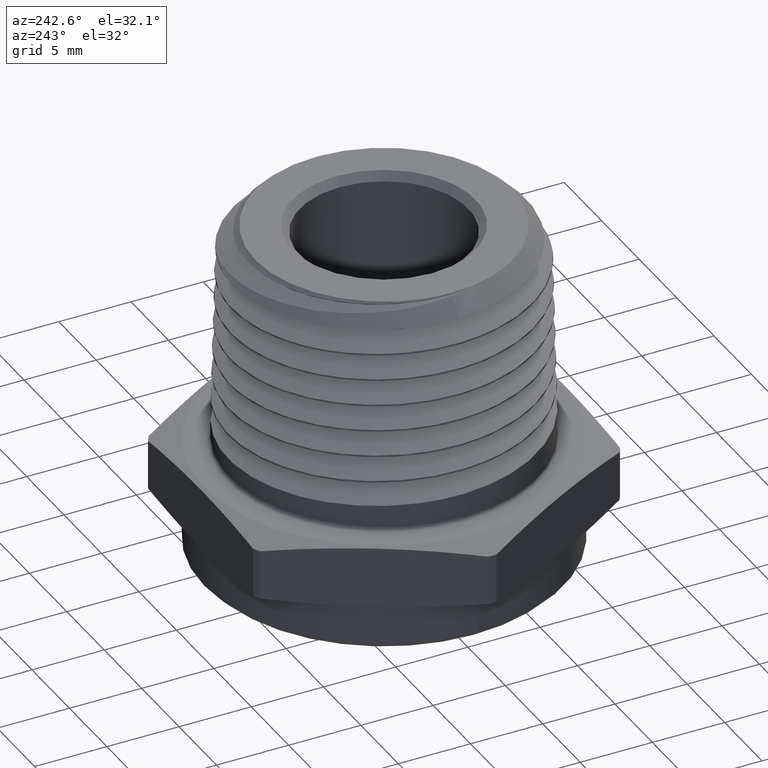
[diagram: clean part render]
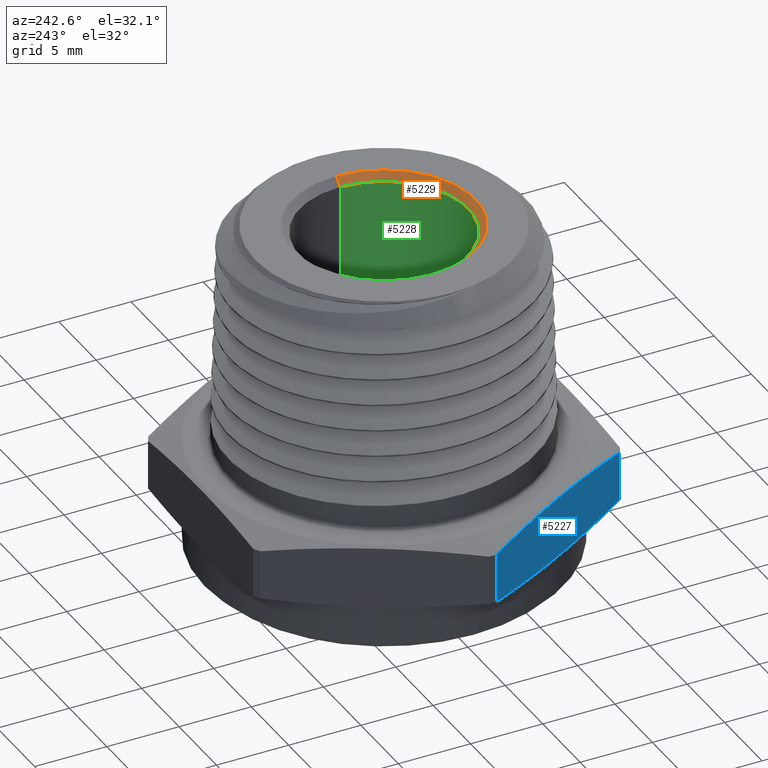
[diagram: same view with three faces highlighted in distinct colors, each labeled with its STEP entity id]
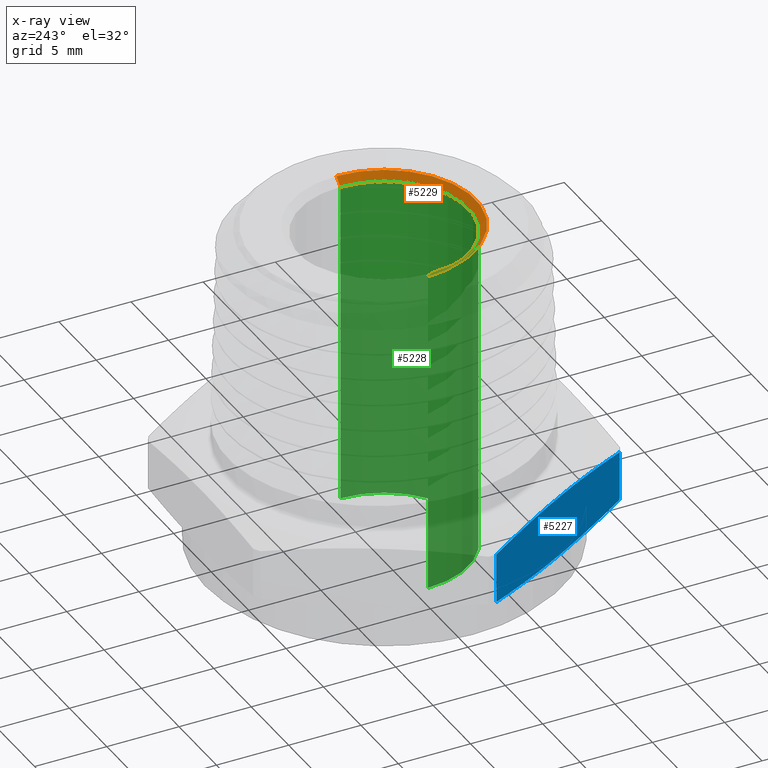
[diagram: x-ray of the same camera — body ghosted, the three highlighted faces saturated]
A machine part, auxiliary view with three faces highlighted in distinct colors.
The next image is the same camera in x-ray (body ghosted, the three faces saturated) — at least one of them is partly hidden behind the body in this view.
Their STEP definitions:

[orange] entity #5229 — the highlighted conical surface has half-angle 45 deg.
#228 = VERTEX_POINT ( 'NONE', #4882 ) ;
#237 = VERTEX_POINT ( 'NONE', #4891 ) ;
#238 = VERTEX_POINT ( 'NONE', #4892 ) ;
#240 = VERTEX_POINT ( 'NONE', #4894 ) ;
#297 = EDGE_LOOP ( 'NONE', ( #2568, #2569, #2570, #2571 ) ) ;
#2057 = CARTESIAN_POINT ( 'NONE',  ( 1.510396341863000100E-018, 0.0000000000000000000, 0.7599999999999999000 ) ) ;
#2058 = DIRECTION ( 'NONE',  ( 2.430948377055037300E-018, -0.0000000000000000000, -1.000000000000000000 ) ) ;
#2059 = DIRECTION ( 'NONE',  ( -1.000000000000000000, 0.0000000000000000000, 0.0000000000000000000 ) ) ;
#2060 = DIRECTION ( 'NONE',  ( 0.7071067811865421300, 0.0000000000000000000, 0.7071067811865529000 ) ) ;
#2061 = CARTESIAN_POINT ( 'NONE',  ( -0.2299999999999998700, 2.816687638038910500E-017, 0.7599999999999999000 ) ) ;
#2065 = CARTESIAN_POINT ( 'NONE',  ( 0.2299999999999998700, 0.0000000000000000000, 0.7599999999999999000 ) ) ;
#2066 = DIRECTION ( 'NONE',  ( -0.7071067811865421300, 8.659560562354867500E-017, 0.7071067811865529000 ) ) ;
#2069 = CARTESIAN_POINT ( 'NONE',  ( 1.461777374321899200E-018, 0.0000000000000000000, 0.7800000000000000300 ) ) ;
#2070 = DIRECTION ( 'NONE',  ( 2.430948377055037300E-018, -0.0000000000000000000, -1.000000000000000000 ) ) ;
#2071 = DIRECTION ( 'NONE',  ( -1.000000000000000000, 0.0000000000000000000, 0.0000000000000000000 ) ) ;
#2535 = AXIS2_PLACEMENT_3D ( 'NONE', #5031, #5032, #5030 ) ;
#2568 = ORIENTED_EDGE ( 'NONE', *, *, #3145, .T. ) ;
#2569 = ORIENTED_EDGE ( 'NONE', *, *, #3148, .T. ) ;
#2570 = ORIENTED_EDGE ( 'NONE', *, *, #3149, .F. ) ;
#2571 = ORIENTED_EDGE ( 'NONE', *, *, #3150, .F. ) ;
#2711 = CIRCLE ( 'NONE', #3069, 0.2299999999999998700 ) ;
#2715 = LINE ( 'NONE', #2061, #2720 ) ;
#2719 = CIRCLE ( 'NONE', #3071, 0.2499999999999996100 ) ;
#2720 = VECTOR ( 'NONE', #2066, 39.37007874015748100 ) ;
#2721 = LINE ( 'NONE', #2065, #2723 ) ;
#2723 = VECTOR ( 'NONE', #2060, 39.37007874015748100 ) ;
#3069 = AXIS2_PLACEMENT_3D ( 'NONE', #2057, #2058, #2059 ) ;
#3071 = AXIS2_PLACEMENT_3D ( 'NONE', #2069, #2070, #2071 ) ;
#3145 = EDGE_CURVE ( 'NONE', #240, #238, #2711, .T. ) ;
#3148 = EDGE_CURVE ( 'NONE', #238, #237, #2715, .T. ) ;
#3149 = EDGE_CURVE ( 'NONE', #228, #237, #2719, .T. ) ;
#3150 = EDGE_CURVE ( 'NONE', #240, #228, #2721, .T. ) ;
#4882 = CARTESIAN_POINT ( 'NONE',  ( 0.2499999999999996100, 0.0000000000000000000, 0.7800000000000000300 ) ) ;
#4891 = CARTESIAN_POINT ( 'NONE',  ( -0.2499999999999996100, 3.061616997868378700E-017, 0.7800000000000000300 ) ) ;
#4892 = CARTESIAN_POINT ( 'NONE',  ( -0.2299999999999998700, 2.939152317953644300E-017, 0.7599999999999999000 ) ) ;
#4894 = CARTESIAN_POINT ( 'NONE',  ( 0.2299999999999998700, 0.0000000000000000000, 0.7599999999999999000 ) ) ;
#5030 = DIRECTION ( 'NONE',  ( 1.000000000000000000, 0.0000000000000000000, 0.0000000000000000000 ) ) ;
#5031 = CARTESIAN_POINT ( 'NONE',  ( 1.510396341863000100E-018, 0.0000000000000000000, 0.7599999999999999000 ) ) ;
#5032 = DIRECTION ( 'NONE',  ( -2.430948377055037300E-018, 0.0000000000000000000, 1.000000000000000000 ) ) ;
#5153 = FACE_OUTER_BOUND ( 'NONE', #297, .T. ) ;
#5162 = CONICAL_SURFACE ( 'NONE', #2535, 0.2299999999999998700, 0.7853981633974407300 ) ;
#5229 = ADVANCED_FACE ( 'NONE', ( #5153 ), #5162, .F. ) ;

[blue] entity #5227 — the highlighted planar face has unit normal (0.866, 0.5, 0).
#255 = EDGE_LOOP ( 'NONE', ( #3590, #3591, #3592, #3593 ) ) ;
#1453 = DIRECTION ( 'NONE',  ( 1.224646799147351200E-016, 0.0000000000000000000, 1.000000000000000000 ) ) ;
#1455 = CARTESIAN_POINT ( 'NONE',  ( -0.2947727564142041400, -0.4894386092034729900, -1.692951067439552400E-017 ) ) ;
#1479 = CARTESIAN_POINT ( 'NONE',  ( -0.3408527382402091200, -0.4096257394689820600, 0.1612771239217950000 ) ) ;
#1484 = CARTESIAN_POINT ( 'NONE',  ( -0.3178127473272067100, -0.4495321743362275500, 0.1574481345656340800 ) ) ;
#1491 = CARTESIAN_POINT ( 'NONE',  ( -0.2947727564142042000, -0.4894386092034731000, 0.1527084664901230100 ) ) ;
#1493 = CARTESIAN_POINT ( 'NONE',  ( -0.3869327200662141000, -0.3298128697344910300, 0.1664973008015930000 ) ) ;
#1494 = CARTESIAN_POINT ( 'NONE',  ( -0.4330127018922188000, -0.2500000000000000600, 0.1692515679650067300 ) ) ;
#1495 = CARTESIAN_POINT ( 'NONE',  ( -0.4790926837182239400, -0.1701871302655092200, 0.1664973008015930000 ) ) ;
#1496 = CARTESIAN_POINT ( 'NONE',  ( -0.5251726655442290300, -0.09037426053101824100, 0.1612771239217950000 ) ) ;
#1497 = CARTESIAN_POINT ( 'NONE',  ( -0.5482126564572313800, -0.05046782566377273200, 0.1574481345656340600 ) ) ;
#1498 = CARTESIAN_POINT ( 'NONE',  ( -0.5712526473702339600, -0.01056139079652729200, 0.1527084664901230400 ) ) ;
#1527 = CARTESIAN_POINT ( 'NONE',  ( -0.5482126564572312700, -0.05046782566377279500, 0.01255186543436593300 ) ) ;
#1529 = CARTESIAN_POINT ( 'NONE',  ( -0.5251726655442289200, -0.09037426053101828300, 0.008722876078205021500 ) ) ;
#1538 = CARTESIAN_POINT ( 'NONE',  ( -0.5712526473702337300, -0.01056139079652729100, 0.01729153350987696100 ) ) ;
#1539 = CARTESIAN_POINT ( 'NONE',  ( -0.4790926837182236700, -0.1701871302655091900, 0.003502699198406979000 ) ) ;
#1540 = CARTESIAN_POINT ( 'NONE',  ( -0.4330127018922189700, -0.2500000000000002200, 0.0007484320349932120400 ) ) ;
#1541 = CARTESIAN_POINT ( 'NONE',  ( -0.3869327200662141000, -0.3298128697344912000, 0.003502699198406972000 ) ) ;
#1542 = CARTESIAN_POINT ( 'NONE',  ( -0.3408527382402090600, -0.4096257394689821200, 0.008722876078204999000 ) ) ;
#1543 = CARTESIAN_POINT ( 'NONE',  ( -0.3178127473272066000, -0.4495321743362275500, 0.01255186543436588900 ) ) ;
#1544 = CARTESIAN_POINT ( 'NONE',  ( -0.2947727564142042000, -0.4894386092034731000, 0.01729153350987692700 ) ) ;
#2205 = DIRECTION ( 'NONE',  ( -1.224646799147351200E-016, -0.0000000000000000000, -1.000000000000000000 ) ) ;
#2206 = CARTESIAN_POINT ( 'NONE',  ( -0.5712526473702337300, -0.01056139079652729100, 1.692951067439552400E-017 ) ) ;
#2428 = CARTESIAN_POINT ( 'NONE',  ( -0.2947727564142042000, -0.4894386092034731000, 0.1527084664901230100 ) ) ;
#2534 = AXIS2_PLACEMENT_3D ( 'NONE', #5022, #5027, #5028 ) ;
#2671 = LINE ( 'NONE', #1455, #2675 ) ;
#2675 = VECTOR ( 'NONE', #1453, 39.37007874015748100 ) ;
#2764 = LINE ( 'NONE', #2206, #2766 ) ;
#2766 = VECTOR ( 'NONE', #2205, 39.37007874015748100 ) ;
#3112 = EDGE_CURVE ( 'NONE', #5353, #3580, #2671, .T. ) ;
#3126 = EDGE_CURVE ( 'NONE', #3580, #5350, #5370, .T. ) ;
#3131 = EDGE_CURVE ( 'NONE', #5342, #5353, #5372, .T. ) ;
#3189 = EDGE_CURVE ( 'NONE', #5350, #5342, #2764, .T. ) ;
#3580 = VERTEX_POINT ( 'NONE', #2428 ) ;
#3590 = ORIENTED_EDGE ( 'NONE', *, *, #3131, .T. ) ;
#3591 = ORIENTED_EDGE ( 'NONE', *, *, #3112, .T. ) ;
#3592 = ORIENTED_EDGE ( 'NONE', *, *, #3126, .T. ) ;
#3593 = ORIENTED_EDGE ( 'NONE', *, *, #3189, .T. ) ;
#5021 = PLANE ( 'NONE',  #2534 ) ;
#5022 = CARTESIAN_POINT ( 'NONE',  ( -0.5773502691896257300, 6.829619984160658000E-017, 0.1699999999999999800 ) ) ;
#5027 = DIRECTION ( 'NONE',  ( 0.8660254037844383700, 0.5000000000000005600, -0.0000000000000000000 ) ) ;
#5028 = DIRECTION ( 'NONE',  ( -0.5000000000000004400, 0.8660254037844382600, 0.0000000000000000000 ) ) ;
#5061 = CARTESIAN_POINT ( 'NONE',  ( -0.5712526473702337300, -0.01056139079652729100, 0.01729153350987696100 ) ) ;
#5069 = CARTESIAN_POINT ( 'NONE',  ( -0.5712526473702339600, -0.01056139079652729200, 0.1527084664901230400 ) ) ;
#5072 = CARTESIAN_POINT ( 'NONE',  ( -0.2947727564142042000, -0.4894386092034731000, 0.01729153350987692700 ) ) ;
#5156 = FACE_OUTER_BOUND ( 'NONE', #255, .T. ) ;
#5227 = ADVANCED_FACE ( 'NONE', ( #5156 ), #5021, .F. ) ;
#5342 = VERTEX_POINT ( 'NONE', #5061 ) ;
#5350 = VERTEX_POINT ( 'NONE', #5069 ) ;
#5353 = VERTEX_POINT ( 'NONE', #5072 ) ;
#5370 = B_SPLINE_CURVE_WITH_KNOTS ( 'NONE', 3,
 ( #1491, #1484, #1479, #1493, #1494, #1495, #1496, #1497, #1498 ),
 .UNSPECIFIED., .F., .F.,
 ( 4, 2, 1, 2, 4 ),
 ( 1.944233093203360800E-006, 0.003513238848234777700, 0.007024533463376351500, 0.01053582807851792500, 0.01404712269365950000 ),
 .UNSPECIFIED. ) ;
#5372 = B_SPLINE_CURVE_WITH_KNOTS ( 'NONE', 3,
 ( #1538, #1527, #1529, #1539, #1540, #1541, #1542, #1543, #1544 ),
 .UNSPECIFIED., .F., .F.,
 ( 4, 2, 1, 2, 4 ),
 ( 1.944233093215832900E-006, 0.003513238848234789800, 0.007024533463376363700, 0.01053582807851793600, 0.01404712269365951000 ),
 .UNSPECIFIED. ) ;

[green] entity #5228 — the highlighted cylindrical surface (partial cylindrical patch) has radius 5.842 mm, axis along (0, 0, -1).
#229 = VERTEX_POINT ( 'NONE', #4883 ) ;
#236 = VERTEX_POINT ( 'NONE', #4890 ) ;
#238 = VERTEX_POINT ( 'NONE', #4892 ) ;
#240 = VERTEX_POINT ( 'NONE', #4894 ) ;
#302 = EDGE_LOOP ( 'NONE', ( #2593, #2565, #2566, #2567 ) ) ;
#1564 = CARTESIAN_POINT ( 'NONE',  ( 0.2299999999999999300, 2.816687638038911700E-017, -0.1300000000000000000 ) ) ;
#2054 = DIRECTION ( 'NONE',  ( 2.430948377055037300E-018, -0.0000000000000000000, -1.000000000000000000 ) ) ;
#2055 = CARTESIAN_POINT ( 'NONE',  ( -0.2299999999999999300, 0.0000000000000000000, -0.1300000000000000000 ) ) ;
#2056 = DIRECTION ( 'NONE',  ( 2.430948377055037300E-018, -0.0000000000000000000, -1.000000000000000000 ) ) ;
#2057 = CARTESIAN_POINT ( 'NONE',  ( 1.510396341863000100E-018, 0.0000000000000000000, 0.7599999999999999000 ) ) ;
#2058 = DIRECTION ( 'NONE',  ( 2.430948377055037300E-018, -0.0000000000000000000, -1.000000000000000000 ) ) ;
#2059 = DIRECTION ( 'NONE',  ( -1.000000000000000000, 0.0000000000000000000, 0.0000000000000000000 ) ) ;
#2062 = CARTESIAN_POINT ( 'NONE',  ( 1.510396341863000100E-018, 0.0000000000000000000, -0.1299999999999999800 ) ) ;
#2063 = DIRECTION ( 'NONE',  ( 0.0000000000000000000, 0.0000000000000000000, 1.000000000000000000 ) ) ;
#2064 = DIRECTION ( 'NONE',  ( 1.000000000000000000, 0.0000000000000000000, 0.0000000000000000000 ) ) ;
#2536 = AXIS2_PLACEMENT_3D ( 'NONE', #5029, #5025, #5026 ) ;
#2565 = ORIENTED_EDGE ( 'NONE', *, *, #3144, .T. ) ;
#2566 = ORIENTED_EDGE ( 'NONE', *, *, #3146, .F. ) ;
#2567 = ORIENTED_EDGE ( 'NONE', *, *, #3147, .F. ) ;
#2593 = ORIENTED_EDGE ( 'NONE', *, *, #3145, .F. ) ;
#2709 = LINE ( 'NONE', #1564, #2714 ) ;
#2711 = CIRCLE ( 'NONE', #3069, 0.2299999999999998700 ) ;
#2713 = CIRCLE ( 'NONE', #3070, 0.2299999999999998400 ) ;
#2714 = VECTOR ( 'NONE', #2054, 39.37007874015748100 ) ;
#2716 = LINE ( 'NONE', #2055, #2718 ) ;
#2718 = VECTOR ( 'NONE', #2056, 39.37007874015748100 ) ;
#3069 = AXIS2_PLACEMENT_3D ( 'NONE', #2057, #2058, #2059 ) ;
#3070 = AXIS2_PLACEMENT_3D ( 'NONE', #2062, #2063, #2064 ) ;
#3144 = EDGE_CURVE ( 'NONE', #240, #229, #2709, .T. ) ;
#3145 = EDGE_CURVE ( 'NONE', #240, #238, #2711, .T. ) ;
#3146 = EDGE_CURVE ( 'NONE', #236, #229, #2713, .T. ) ;
#3147 = EDGE_CURVE ( 'NONE', #238, #236, #2716, .T. ) ;
#4883 = CARTESIAN_POINT ( 'NONE',  ( 0.2299999999999998400, 2.816687638038911700E-017, -0.1299999999999999800 ) ) ;
#4890 = CARTESIAN_POINT ( 'NONE',  ( -0.2299999999999998400, 0.0000000000000000000, -0.1299999999999999800 ) ) ;
#4892 = CARTESIAN_POINT ( 'NONE',  ( -0.2299999999999998700, 2.939152317953644300E-017, 0.7599999999999999000 ) ) ;
#4894 = CARTESIAN_POINT ( 'NONE',  ( 0.2299999999999998700, 0.0000000000000000000, 0.7599999999999999000 ) ) ;
#5025 = DIRECTION ( 'NONE',  ( 2.430948377055037300E-018, -0.0000000000000000000, -1.000000000000000000 ) ) ;
#5026 = DIRECTION ( 'NONE',  ( -1.000000000000000000, 0.0000000000000000000, 0.0000000000000000000 ) ) ;
#5029 = CARTESIAN_POINT ( 'NONE',  ( 3.673940397441982900E-018, 0.0000000000000000000, -0.1300000000000000000 ) ) ;
#5157 = FACE_OUTER_BOUND ( 'NONE', #302, .T. ) ;
#5160 = CYLINDRICAL_SURFACE ( 'NONE', #2536, 0.2299999999999999300 ) ;
#5228 = ADVANCED_FACE ( 'NONE', ( #5157 ), #5160, .F. ) ;